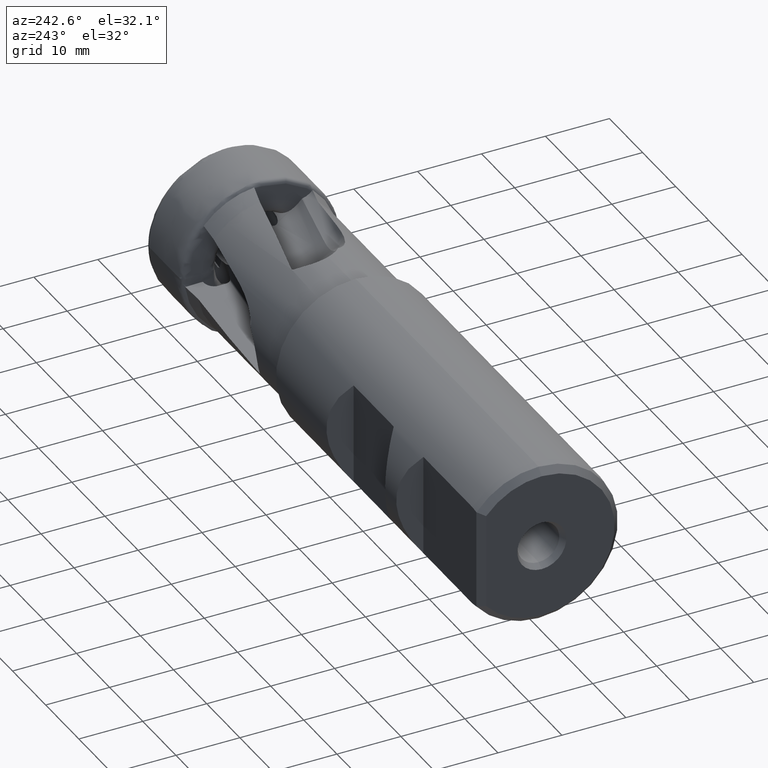
[diagram: clean part render]
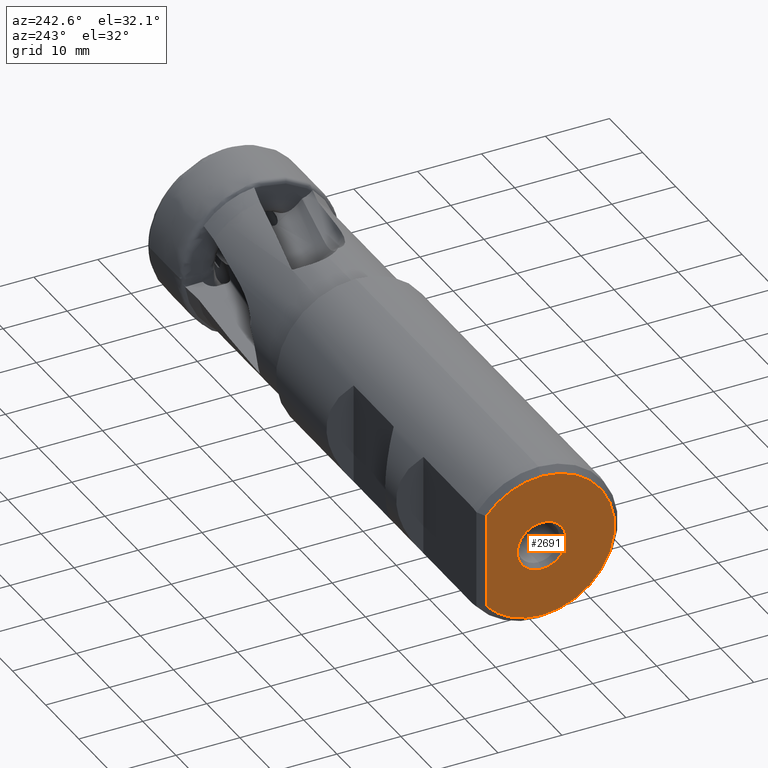
[diagram: same view with one face highlighted and labeled with its STEP entity id]
A machine part, auxiliary view. The second image highlights one B-rep face of the part: STEP entity #2691.
In plain terms, the highlighted planar face has unit normal (-1, 0, 0).
Its self-contained STEP definition (entity closure, byte-faithful):
#169 = CIRCLE ( 'NONE', #5178, 11.39999999999998800 ) ;
#203 = CIRCLE ( 'NONE', #5170, 3.827350269189616400 ) ;
#292 = EDGE_LOOP ( 'NONE', ( #1222, #1238 ) ) ;
#347 = VERTEX_POINT ( 'NONE', #7472 ) ;
#466 = DIRECTION ( 'NONE',  ( -1.000000000000000000, 0.0000000000000000000, 0.0000000000000000000 ) ) ;
#484 = DIRECTION ( 'NONE',  ( 0.0000000000000000000, 0.0000000000000000000, 1.000000000000000000 ) ) ;
#486 = PLANE ( 'NONE',  #5270 ) ;
#487 = CARTESIAN_POINT ( 'NONE',  ( -94.62000000000000500, 11.39999999999998800, 0.0000000000000000000 ) ) ;
#638 = CARTESIAN_POINT ( 'NONE',  ( -94.62000000000000500, 0.0000000000000000000, 0.0000000000000000000 ) ) ;
#639 = DIRECTION ( 'NONE',  ( 1.000000000000000000, -0.0000000000000000000, -0.0000000000000000000 ) ) ;
#640 = DIRECTION ( 'NONE',  ( 0.0000000000000000000, 0.0000000000000000000, -1.000000000000000000 ) ) ;
#1073 = CARTESIAN_POINT ( 'NONE',  ( -94.62000000000000500, 0.0000000000000000000, 0.0000000000000000000 ) ) ;
#1074 = DIRECTION ( 'NONE',  ( 1.000000000000000000, -0.0000000000000000000, -0.0000000000000000000 ) ) ;
#1075 = DIRECTION ( 'NONE',  ( 0.0000000000000000000, 0.0000000000000000000, -1.000000000000000000 ) ) ;
#1113 = EDGE_LOOP ( 'NONE', ( #1267, #1248, #1237, #1259 ) ) ;
#1222 = ORIENTED_EDGE ( 'NONE', *, *, #5616, .T. ) ;
#1237 = ORIENTED_EDGE ( 'NONE', *, *, #5688, .F. ) ;
#1238 = ORIENTED_EDGE ( 'NONE', *, *, #2138, .T. ) ;
#1248 = ORIENTED_EDGE ( 'NONE', *, *, #2235, .F. ) ;
#1259 = ORIENTED_EDGE ( 'NONE', *, *, #5566, .F. ) ;
#1267 = ORIENTED_EDGE ( 'NONE', *, *, #2092, .F. ) ;
#1387 = CARTESIAN_POINT ( 'NONE',  ( -94.62000000000000500, 0.0000000000000000000, 3.827350269189616400 ) ) ;
#1395 = CARTESIAN_POINT ( 'NONE',  ( -94.62000000000000500, 4.687152256378824200E-016, -3.827350269189616400 ) ) ;
#1538 = CARTESIAN_POINT ( 'NONE',  ( -94.62000000000000500, 0.0000000000000000000, 0.0000000000000000000 ) ) ;
#1539 = DIRECTION ( 'NONE',  ( 1.000000000000000000, -0.0000000000000000000, -0.0000000000000000000 ) ) ;
#1540 = DIRECTION ( 'NONE',  ( 0.0000000000000000000, 0.0000000000000000000, -1.000000000000000000 ) ) ;
#2092 = EDGE_CURVE ( 'NONE', #347, #7723, #2599, .T. ) ;
#2138 = EDGE_CURVE ( 'NONE', #4621, #4655, #6454, .T. ) ;
#2235 = EDGE_CURVE ( 'NONE', #7628, #347, #4753, .T. ) ;
#2362 = CARTESIAN_POINT ( 'NONE',  ( -94.62000000000000500, 0.0000000000000000000, -11.39999999999998800 ) ) ;
#2420 = CARTESIAN_POINT ( 'NONE',  ( -94.62000000000000500, 8.700000000000001100, 7.366817494685186300 ) ) ;
#2431 = CARTESIAN_POINT ( 'NONE',  ( -94.62000000000000500, 1.457329690985348800E-015, 11.39999999999998800 ) ) ;
#2599 = LINE ( 'NONE', #2937, #2603 ) ;
#2603 = VECTOR ( 'NONE', #2932, 1000.000000000000000 ) ;
#2691 = ADVANCED_FACE ( 'NONE', ( #3296, #4712 ), #486, .T. ) ;
#2932 = DIRECTION ( 'NONE',  ( 0.0000000000000000000, 0.0000000000000000000, 1.000000000000000000 ) ) ;
#2937 = CARTESIAN_POINT ( 'NONE',  ( -94.62000000000000500, 8.700000000000001100, 0.0000000000000000000 ) ) ;
#3089 = CIRCLE ( 'NONE', #5301, 11.39999999999998800 ) ;
#3296 = FACE_OUTER_BOUND ( 'NONE', #1113, .T. ) ;
#3346 = AXIS2_PLACEMENT_3D ( 'NONE', #3671, #3841, #3793 ) ;
#3671 = CARTESIAN_POINT ( 'NONE',  ( -94.62000000000000500, 0.0000000000000000000, 0.0000000000000000000 ) ) ;
#3793 = DIRECTION ( 'NONE',  ( 0.0000000000000000000, 0.0000000000000000000, -1.000000000000000000 ) ) ;
#3841 = DIRECTION ( 'NONE',  ( 1.000000000000000000, -0.0000000000000000000, -0.0000000000000000000 ) ) ;
#4621 = VERTEX_POINT ( 'NONE', #1395 ) ;
#4655 = VERTEX_POINT ( 'NONE', #1387 ) ;
#4712 = FACE_BOUND ( 'NONE', #292, .T. ) ;
#4753 = CIRCLE ( 'NONE', #5087, 11.39999999999998800 ) ;
#5087 = AXIS2_PLACEMENT_3D ( 'NONE', #7981, #8042, #7960 ) ;
#5170 = AXIS2_PLACEMENT_3D ( 'NONE', #638, #639, #640 ) ;
#5178 = AXIS2_PLACEMENT_3D ( 'NONE', #1538, #1539, #1540 ) ;
#5270 = AXIS2_PLACEMENT_3D ( 'NONE', #487, #466, #484 ) ;
#5301 = AXIS2_PLACEMENT_3D ( 'NONE', #1073, #1074, #1075 ) ;
#5566 = EDGE_CURVE ( 'NONE', #7723, #7736, #169, .T. ) ;
#5616 = EDGE_CURVE ( 'NONE', #4655, #4621, #203, .T. ) ;
#5688 = EDGE_CURVE ( 'NONE', #7736, #7628, #3089, .T. ) ;
#6454 = CIRCLE ( 'NONE', #3346, 3.827350269189616400 ) ;
#7472 = CARTESIAN_POINT ( 'NONE',  ( -94.62000000000000500, 8.700000000000001100, -7.366817494685186300 ) ) ;
#7628 = VERTEX_POINT ( 'NONE', #2362 ) ;
#7723 = VERTEX_POINT ( 'NONE', #2420 ) ;
#7736 = VERTEX_POINT ( 'NONE', #2431 ) ;
#7960 = DIRECTION ( 'NONE',  ( 0.0000000000000000000, 0.0000000000000000000, -1.000000000000000000 ) ) ;
#7981 = CARTESIAN_POINT ( 'NONE',  ( -94.62000000000000500, 0.0000000000000000000, 0.0000000000000000000 ) ) ;
#8042 = DIRECTION ( 'NONE',  ( 1.000000000000000000, -0.0000000000000000000, -0.0000000000000000000 ) ) ;